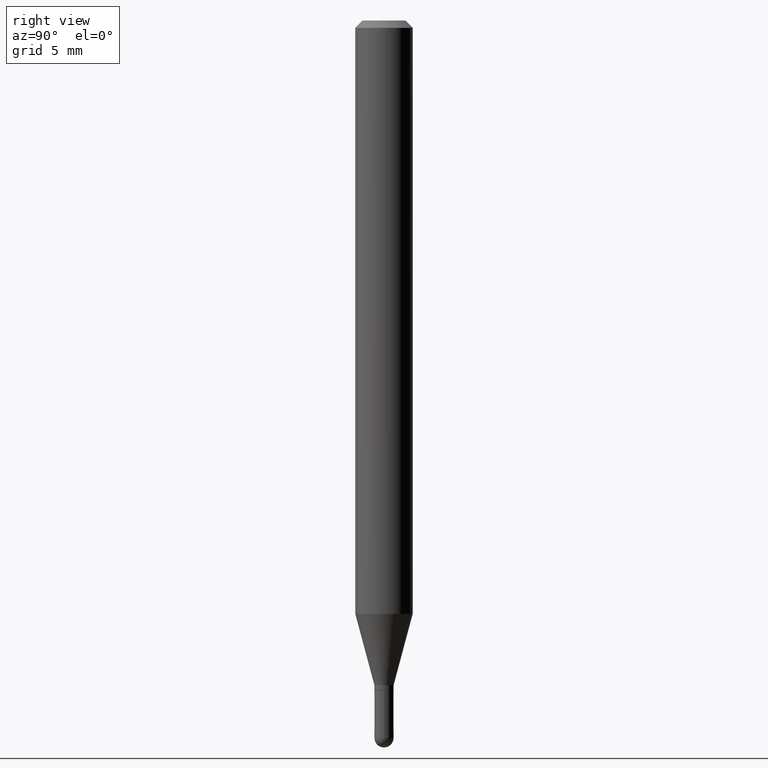
[diagram: clean part render]
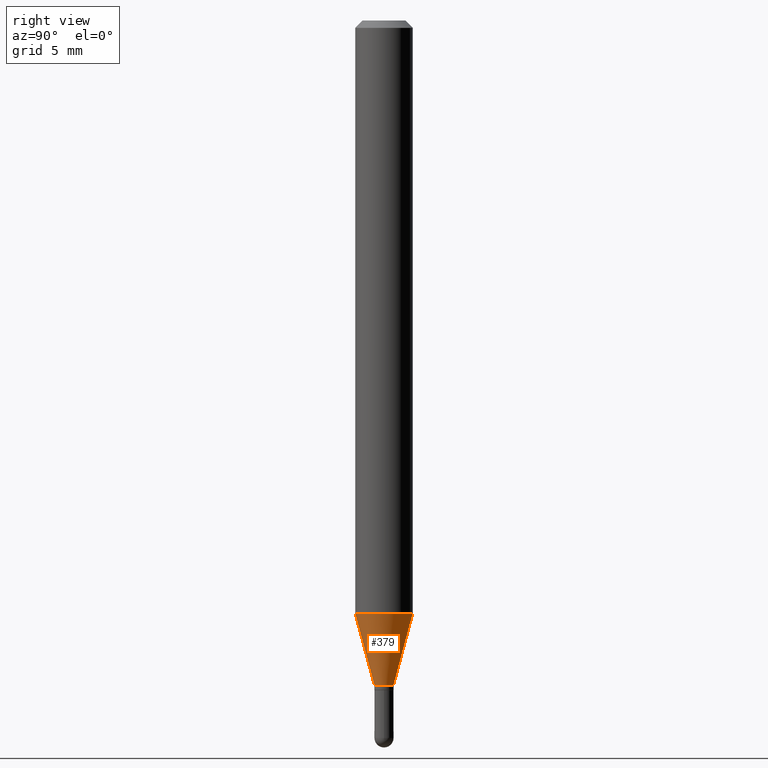
[diagram: same view with one face highlighted and labeled with its STEP entity id]
A machine part, right view. The second image highlights one B-rep face of the part: STEP entity #379.
In plain terms, the highlighted conical surface has half-angle 15 deg.
Its self-contained STEP definition (entity closure, byte-faithful):
#22 = ORIENTED_EDGE ( 'NONE', *, *, #192, .T. ) ;
#29 = CARTESIAN_POINT ( 'NONE',  ( 1.399769189447725642E-16, 0.01969999999999514154, -1.368099999999999650 ) ) ;
#75 = ORIENTED_EDGE ( 'NONE', *, *, #143, .F. ) ;
#82 = DIRECTION ( 'NONE',  ( -6.982962677686265922E-15, -1.000000000000000000, 4.626330217890369336E-15 ) ) ;
#107 = DIRECTION ( 'NONE',  ( -6.982962677686266711E-15, -1.000000000000000000, 0.000000000000000000 ) ) ;
#130 = EDGE_CURVE ( 'NONE', #479, #326, #393, .T. ) ;
#143 = EDGE_CURVE ( 'NONE', #470, #450, #490, .T. ) ;
#144 = FACE_OUTER_BOUND ( 'NONE', #465, .T. ) ;
#155 = DIRECTION ( 'NONE',  ( -2.444811295007267252E-29, 3.492422932273066730E-15, 1.000000000000000000 ) ) ;
#157 = CARTESIAN_POINT ( 'NONE',  ( 2.985710637963151860E-29, -4.265099855538406098E-15, -1.221243800722164430 ) ) ;
#180 = CARTESIAN_POINT ( 'NONE',  ( 4.195754854663687794E-16, 0.05904999999999571703, -1.221243800722164652 ) ) ;
#192 = EDGE_CURVE ( 'NONE', #326, #450, #249, .T. ) ;
#197 = DIRECTION ( 'NONE',  ( 1.839019923739601104E-15, 0.2588190451025250693, 0.9659258262890670910 ) ) ;
#202 = CONICAL_SURFACE ( 'NONE', #374, 0.01969999999999991550, 0.2617993877991502960 ) ;
#228 = CARTESIAN_POINT ( 'NONE',  ( -4.123439461173442532E-16, -0.05905000000000428656, -1.221243800722164430 ) ) ;
#232 = EDGE_CURVE ( 'NONE', #479, #470, #400, .T. ) ;
#249 = LINE ( 'NONE', #29, #331 ) ;
#260 = VECTOR ( 'NONE', #340, 39.37007874015748143 ) ;
#274 = AXIS2_PLACEMENT_3D ( 'NONE', #351, #155, #107 ) ;
#294 = CARTESIAN_POINT ( 'NONE',  ( 2.797762022055708567E-16, 0.01969999999999514154, -1.368099999999999650 ) ) ;
#326 = VERTEX_POINT ( 'NONE', #294 ) ;
#331 = VECTOR ( 'NONE', #197, 39.37007874015748143 ) ;
#340 = DIRECTION ( 'NONE',  ( -1.807323732225330928E-15, -0.2588190451025182970, 0.9659258262890689783 ) ) ;
#351 = CARTESIAN_POINT ( 'NONE',  ( 3.344746332699441266E-29, -4.777983813642781074E-15, -1.368099999999999650 ) ) ;
#357 = ORIENTED_EDGE ( 'NONE', *, *, #130, .T. ) ;
#374 = AXIS2_PLACEMENT_3D ( 'NONE', #420, #454, #491 ) ;
#379 = ADVANCED_FACE ( 'NONE', ( #144 ), #202, .T. ) ;
#382 = AXIS2_PLACEMENT_3D ( 'NONE', #157, #477, #82 ) ;
#386 = CARTESIAN_POINT ( 'NONE',  ( -1.375643647503854166E-16, -0.01970000000000469292, -1.368099999999999650 ) ) ;
#393 = CIRCLE ( 'NONE', #274, 0.01969999999999991550 ) ;
#400 = LINE ( 'NONE', #486, #260 ) ;
#420 = CARTESIAN_POINT ( 'NONE',  ( 3.344746332699441266E-29, -4.777983813642781074E-15, -1.368099999999999650 ) ) ;
#425 = ORIENTED_EDGE ( 'NONE', *, *, #232, .F. ) ;
#450 = VERTEX_POINT ( 'NONE', #180 ) ;
#454 = DIRECTION ( 'NONE',  ( -2.444811295007267252E-29, 3.492422932273066730E-15, 1.000000000000000000 ) ) ;
#465 = EDGE_LOOP ( 'NONE', ( #357, #22, #75, #425 ) ) ;
#470 = VERTEX_POINT ( 'NONE', #228 ) ;
#477 = DIRECTION ( 'NONE',  ( -2.444811295007267252E-29, 3.492422932273066730E-15, 1.000000000000000000 ) ) ;
#479 = VERTEX_POINT ( 'NONE', #386 ) ;
#486 = CARTESIAN_POINT ( 'NONE',  ( -1.375643647503854166E-16, -0.01970000000000469292, -1.368099999999999650 ) ) ;
#490 = CIRCLE ( 'NONE', #382, 0.05904999999999999832 ) ;
#491 = DIRECTION ( 'NONE',  ( -6.982962677686266711E-15, -1.000000000000000000, 0.000000000000000000 ) ) ;